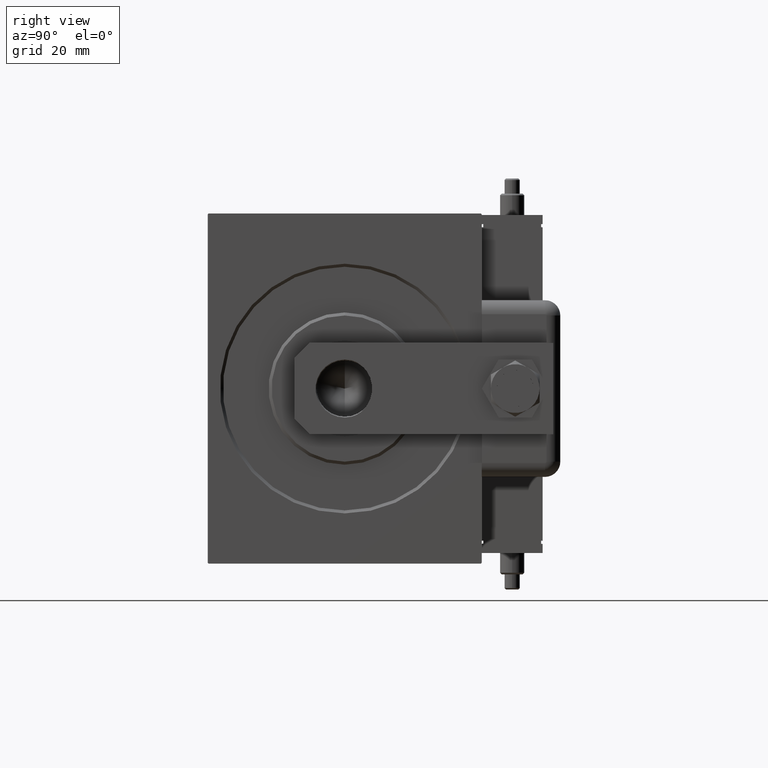
[diagram: clean part render]
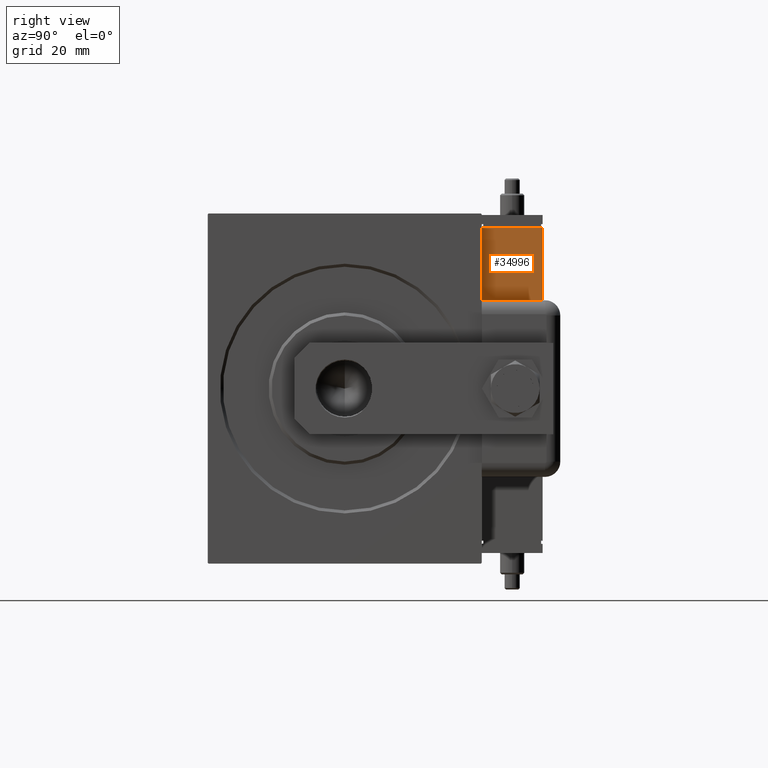
[diagram: same view with one face highlighted and labeled with its STEP entity id]
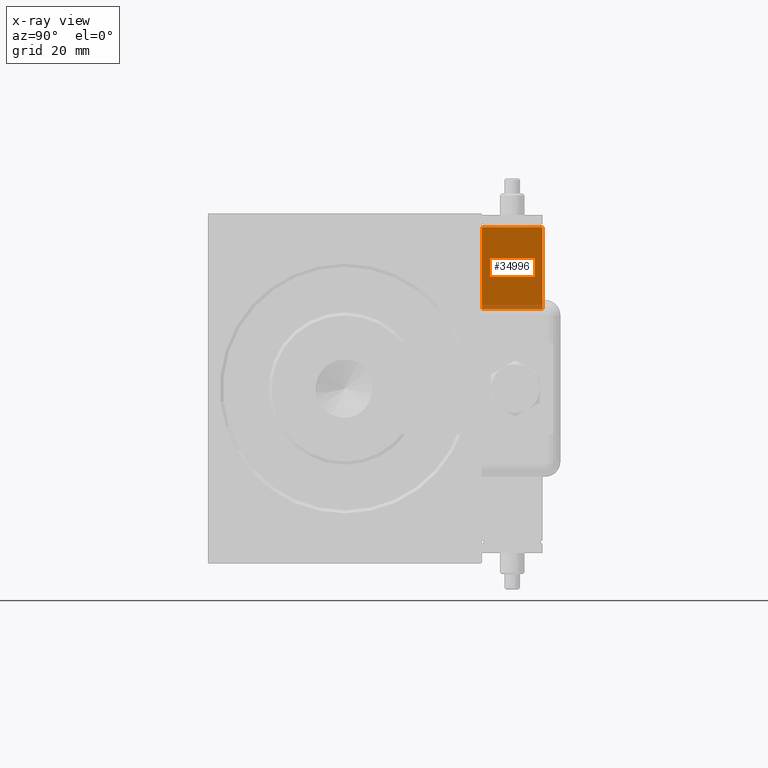
[diagram: x-ray of the same camera — body ghosted, the highlighted face saturated]
A machine part, right view. The second image highlights one B-rep face of the part: STEP entity #34996.
The next image is the same camera in x-ray: the body ghosted, the highlighted face saturated — about 5% of this face is hidden behind the body in this view.
In plain terms, the highlighted planar face has unit normal (-1, 0, 0).
Its self-contained STEP definition (entity closure, byte-faithful):
#1926 = CARTESIAN_POINT ( 'NONE',  ( 20.00000000000005329, -13.49999999999996092, 10.00000000000000000 ) ) ;
#5567 = CARTESIAN_POINT ( 'NONE',  ( 20.00000000000005329, -13.49999999999996092, 10.00000000000000000 ) ) ;
#7088 = DIRECTION ( 'NONE',  ( -1.284980352575412699E-16, -1.000000000000000000, 0.000000000000000000 ) ) ;
#8217 = VERTEX_POINT ( 'NONE', #46100 ) ;
#9037 = ORIENTED_EDGE ( 'NONE', *, *, #48729, .F. ) ;
#11941 = PLANE ( 'NONE',  #57262 ) ;
#13111 = CARTESIAN_POINT ( 'NONE',  ( 20.00000000000005329, -13.49999999999996092, -10.00000000000000000 ) ) ;
#13220 = DIRECTION ( 'NONE',  ( -0.000000000000000000, -0.000000000000000000, -1.000000000000000000 ) ) ;
#15605 = CARTESIAN_POINT ( 'NONE',  ( 20.00000000000005329, -13.49999999999996092, -10.00000000000000000 ) ) ;
#20908 = ORIENTED_EDGE ( 'NONE', *, *, #30887, .F. ) ;
#22823 = CARTESIAN_POINT ( 'NONE',  ( 20.00000000000005684, 13.50000000000003730, -10.00000000000000000 ) ) ;
#23952 = VECTOR ( 'NONE', #49277, 1000.000000000000000 ) ;
#25127 = VECTOR ( 'NONE', #13220, 1000.000000000000000 ) ;
#25458 = EDGE_CURVE ( 'NONE', #59721, #29959, #52929, .T. ) ;
#29131 = LINE ( 'NONE', #52575, #35663 ) ;
#29590 = ORIENTED_EDGE ( 'NONE', *, *, #25458, .T. ) ;
#29959 = VERTEX_POINT ( 'NONE', #15605 ) ;
#30887 = EDGE_CURVE ( 'NONE', #8217, #49008, #36370, .T. ) ;
#32569 = VECTOR ( 'NONE', #39960, 1000.000000000000000 ) ;
#34996 = ADVANCED_FACE ( 'NONE', ( #39987 ), #11941, .F. ) ;
#35663 = VECTOR ( 'NONE', #48016, 1000.000000000000000 ) ;
#35887 = ORIENTED_EDGE ( 'NONE', *, *, #43308, .T. ) ;
#36370 = LINE ( 'NONE', #54950, #25127 ) ;
#39687 = DIRECTION ( 'NONE',  ( -1.000000000000000000, 1.284980352575412699E-16, 0.000000000000000000 ) ) ;
#39960 = DIRECTION ( 'NONE',  ( 1.284980352575412699E-16, 1.000000000000000000, 0.000000000000000000 ) ) ;
#39987 = FACE_OUTER_BOUND ( 'NONE', #50157, .T. ) ;
#43308 = EDGE_CURVE ( 'NONE', #29959, #49008, #53948, .T. ) ;
#46100 = CARTESIAN_POINT ( 'NONE',  ( 20.00000000000005684, 13.50000000000003730, 10.00000000000000000 ) ) ;
#48016 = DIRECTION ( 'NONE',  ( 1.284980352575412699E-16, 1.000000000000000000, 0.000000000000000000 ) ) ;
#48689 = CARTESIAN_POINT ( 'NONE',  ( 20.00000000000005329, -13.49999999999996092, 10.00000000000000000 ) ) ;
#48729 = EDGE_CURVE ( 'NONE', #59721, #8217, #29131, .T. ) ;
#49008 = VERTEX_POINT ( 'NONE', #22823 ) ;
#49277 = DIRECTION ( 'NONE',  ( -0.000000000000000000, -0.000000000000000000, -1.000000000000000000 ) ) ;
#50157 = EDGE_LOOP ( 'NONE', ( #35887, #20908, #9037, #29590 ) ) ;
#52575 = CARTESIAN_POINT ( 'NONE',  ( 20.00000000000005329, -13.49999999999996092, 10.00000000000000000 ) ) ;
#52929 = LINE ( 'NONE', #48689, #23952 ) ;
#53948 = LINE ( 'NONE', #13111, #32569 ) ;
#54950 = CARTESIAN_POINT ( 'NONE',  ( 20.00000000000005684, 13.50000000000003730, 10.00000000000000000 ) ) ;
#57262 = AXIS2_PLACEMENT_3D ( 'NONE', #1926, #39687, #7088 ) ;
#59721 = VERTEX_POINT ( 'NONE', #5567 ) ;